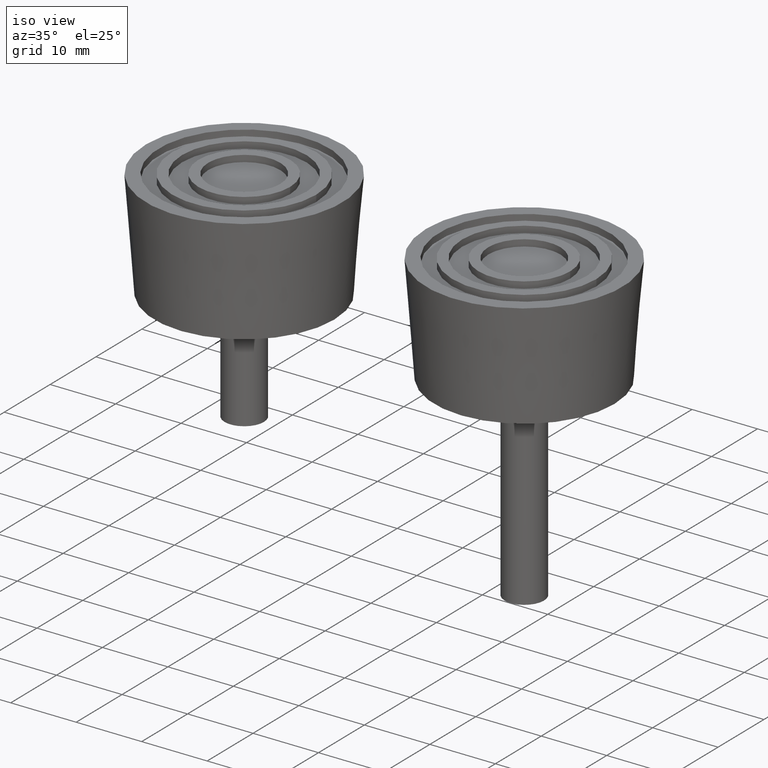
[diagram: clean part render]
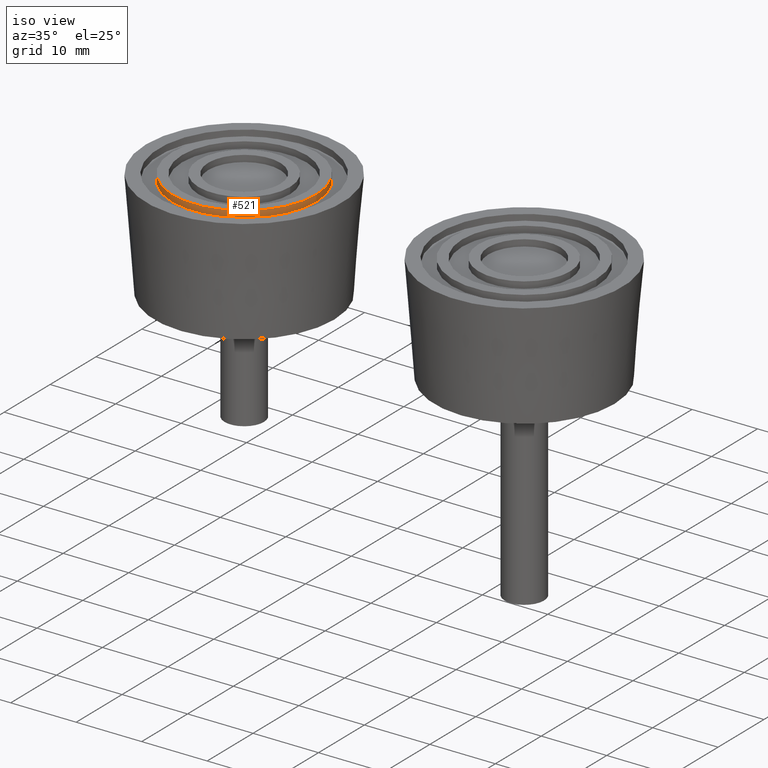
[diagram: same view with one face highlighted and labeled with its STEP entity id]
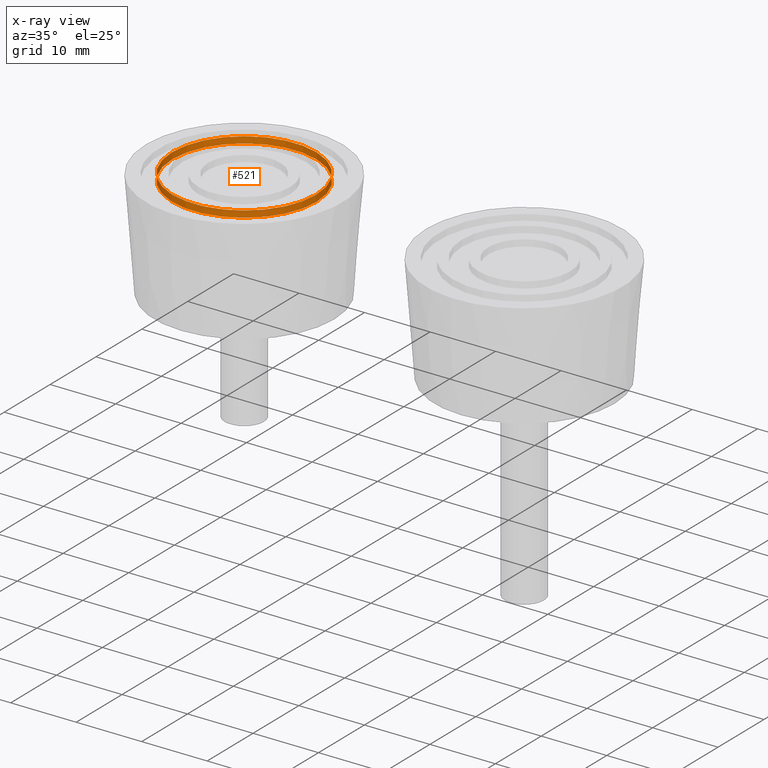
[diagram: x-ray of the same camera — body ghosted, the highlighted face saturated]
A machine part, iso view. The second image highlights one B-rep face of the part: STEP entity #521.
The next image is the same camera in x-ray: the body ghosted, the highlighted face saturated — about 0% of this face is hidden behind the body in this view.
In plain terms, the highlighted cylindrical surface (bore or boss wall) has radius 11 mm, axis along (0, 0, -1).
Its self-contained STEP definition (entity closure, byte-faithful):
#66=FACE_BOUND('',#175,.T.);
#113=FACE_OUTER_BOUND('',#174,.T.);
#174=EDGE_LOOP('',(#414));
#175=EDGE_LOOP('',(#415));
#260=CIRCLE('',#588,11.);
#261=CIRCLE('',#589,11.);
#308=VERTEX_POINT('',#910);
#309=VERTEX_POINT('',#912);
#356=EDGE_CURVE('',#308,#308,#260,.T.);
#357=EDGE_CURVE('',#309,#309,#261,.T.);
#414=ORIENTED_EDGE('',*,*,#356,.T.);
#415=ORIENTED_EDGE('',*,*,#357,.F.);
#493=CYLINDRICAL_SURFACE('',#587,11.);
#521=ADVANCED_FACE('',(#113,#66),#493,.T.);
#587=AXIS2_PLACEMENT_3D('',#909,#716,#717);
#588=AXIS2_PLACEMENT_3D('',#911,#718,#719);
#589=AXIS2_PLACEMENT_3D('',#913,#720,#721);
#716=DIRECTION('center_axis',(0.,0.,-1.));
#717=DIRECTION('ref_axis',(-1.,0.,0.));
#718=DIRECTION('center_axis',(0.,0.,1.));
#719=DIRECTION('ref_axis',(-1.,0.,0.));
#720=DIRECTION('center_axis',(0.,0.,1.));
#721=DIRECTION('ref_axis',(-1.,0.,0.));
#909=CARTESIAN_POINT('Origin',(0.,0.,16.5));
#910=CARTESIAN_POINT('',(11.,1.34711147906209E-15,15.5));
#911=CARTESIAN_POINT('Origin',(0.,0.,15.5));
#912=CARTESIAN_POINT('',(11.,1.34711147906209E-15,16.5));
#913=CARTESIAN_POINT('Origin',(0.,0.,16.5));